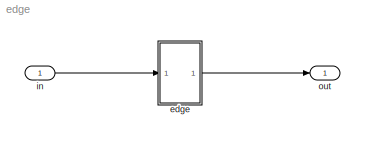
MODEL edge
KIND model
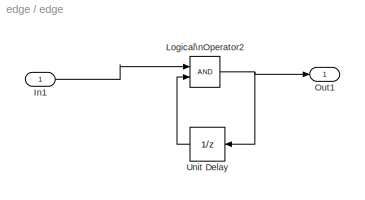
BLOCK [SubSystem] edge
  Ports = [1, 1]
  RequestExecContextInheritance = off
  SID = 1
BLOCK [Inport] edge/In1
  IconDisplay = Port number
  SID = 2
BLOCK [Logic] edge/Logical\nOperator2
  AllPortsSameDT = off
  OutDataTypeStr = boolean
  Ports = [2, 1]
  SID = 3
BLOCK [Outport] edge/Out1
  IconDisplay = Port number
  SID = 5
BLOCK [UnitDelay] edge/Unit Delay
  InputProcessing = Elements as channels (sample based)
  SID = 4
  SampleTime = -1
BLOCK [Inport] in
  IconDisplay = Port number
  OutDataTypeStr = boolean
  SID = 6
BLOCK [Outport] out
  IconDisplay = Port number
  OutDataTypeStr = boolean
  SID = 7
LINE edge/In1:1 -> edge/Logical\nOperator2:1
NET edge/Logical\nOperator2:1 -> edge/Out1:1, edge/Unit Delay:1
LINE edge/Unit Delay:1 -> edge/Logical\nOperator2:2
LINE edge:1 -> out:1
LINE in:1 -> edge:1
note: NET lines group one-source signal fan-out (src -> all destinations, sorted); 1:1 wires keep LINE
